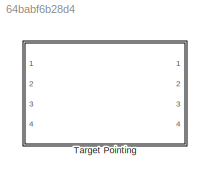
MODEL slx_64babf6b28d4
KIND library
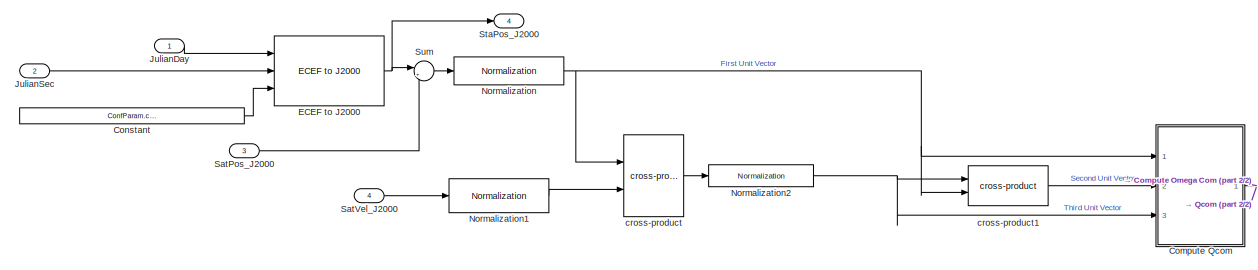
[diagram: Target Pointing - part 1/2, central region]
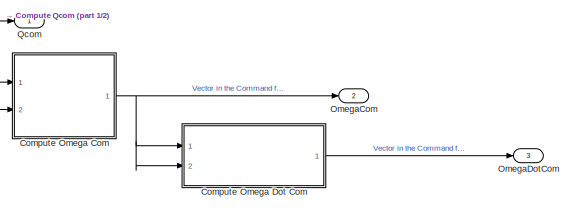
[diagram: Target Pointing - part 2/2, bottom right region]
BLOCK [SubSystem] Target Pointing
  Ports = [4, 4]
  RequestExecContextInheritance = off
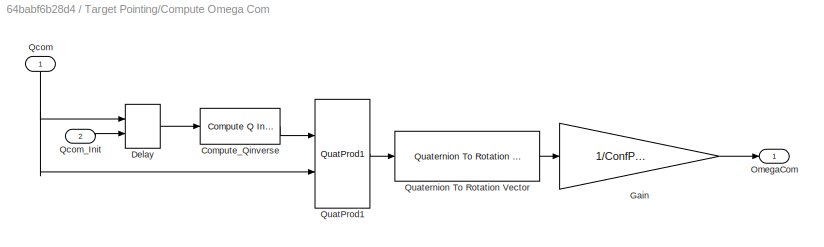
BLOCK [SubSystem] Target Pointing/Compute Omega Com
  Ports = [2, 1]
  RequestExecContextInheritance = off
BLOCK [Reference] Target Pointing/Compute Omega Com/Compute_Qinverse  REF=Qinverse/Compute Q Inverse
  Ports = [1, 1]
  SourceBlock = Qinverse/Compute Q Inverse
  SourceType = SubSystem
BLOCK [Delay] Target Pointing/Compute Omega Com/Delay
  DelayLength = 1
  InitialCondition = confEstim.InitQsat
  InitialConditionSource = Input port
  InputPortMap = u0,p4
  Ports = [2, 1]
  SampleTime = ConfParam.confOrbit.dt
BLOCK [Gain] Target Pointing/Compute Omega Com/Gain
  Gain = 1/ConfParam.confOrbit.dt
  OutDataTypeStr = Inherit: Inherit via internal rule
  ParamDataTypeStr = Inherit: Inherit via internal rule
  SaturateOnIntegerOverflow = off
BLOCK [Outport] Target Pointing/Compute Omega Com/OmegaCom
  IconDisplay = Port number
BLOCK [Inport] Target Pointing/Compute Omega Com/Qcom
  IconDisplay = Port number
BLOCK [Inport] Target Pointing/Compute Omega Com/Qcom_Init
  IconDisplay = Port number
  Port = 2
BLOCK [Reference] Target Pointing/Compute Omega Com/QuatProd1  REF=Qprod/QuatProd1
  Ports = [2, 1]
  SourceBlock = Qprod/QuatProd1
  SourceType = SubSystem
BLOCK [Reference] Target Pointing/Compute Omega Com/Quaternion To Rotation Vector  REF=Quat2Rot/Quaternion To Rotation Vector
  Ports = [1, 1]
  SourceBlock = Quat2Rot/Quaternion To Rotation Vector
  SourceType = SubSystem
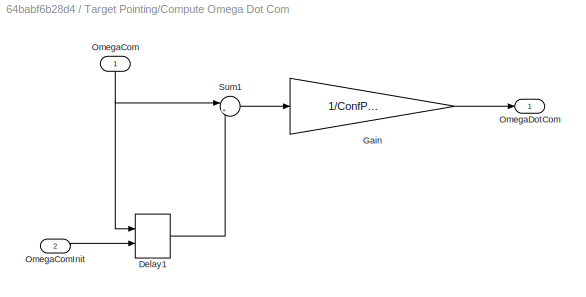
BLOCK [SubSystem] Target Pointing/Compute Omega Dot Com
  Ports = [2, 1]
  RequestExecContextInheritance = off
BLOCK [Delay] Target Pointing/Compute Omega Dot Com/Delay1
  DelayLength = 1
  InitialCondition = confEstim.InitQsat
  InitialConditionSource = Input port
  InputPortMap = u0,p4
  Ports = [2, 1]
  SampleTime = ConfParam.confOrbit.dt
BLOCK [Gain] Target Pointing/Compute Omega Dot Com/Gain
  Gain = 1/ConfParam.confOrbit.dt
  OutDataTypeStr = Inherit: Inherit via internal rule
  ParamDataTypeStr = Inherit: Inherit via internal rule
  SaturateOnIntegerOverflow = off
BLOCK [Inport] Target Pointing/Compute Omega Dot Com/OmegaCom
  IconDisplay = Port number
BLOCK [Inport] Target Pointing/Compute Omega Dot Com/OmegaComInit
  IconDisplay = Port number
  Port = 2
BLOCK [Outport] Target Pointing/Compute Omega Dot Com/OmegaDotCom
  IconDisplay = Port number
BLOCK [Sum] Target Pointing/Compute Omega Dot Com/Sum1
  IconShape = round
  InputSameDT = off
  Inputs = |+-
  OutDataTypeStr = Inherit: Inherit via internal rule
  Ports = [2, 1]
  SaturateOnIntegerOverflow = off
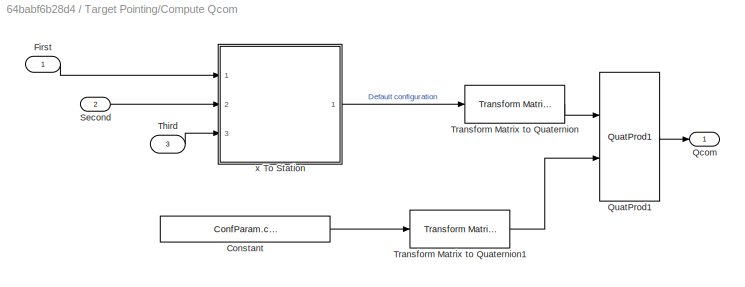
BLOCK [SubSystem] Target Pointing/Compute Qcom
  Ports = [3, 1]
  RequestExecContextInheritance = off
BLOCK [Constant] Target Pointing/Compute Qcom/Constant
  Value = ConfParam.confTargetPointing.M
BLOCK [Inport] Target Pointing/Compute Qcom/First
  IconDisplay = Port number
BLOCK [Outport] Target Pointing/Compute Qcom/Qcom
  IconDisplay = Port number
BLOCK [Reference] Target Pointing/Compute Qcom/QuatProd1  REF=Qprod/QuatProd1
  Ports = [2, 1]
  SourceBlock = Qprod/QuatProd1
  SourceType = SubSystem
BLOCK [Inport] Target Pointing/Compute Qcom/Second
  IconDisplay = Port number
  Port = 2
BLOCK [Inport] Target Pointing/Compute Qcom/Third
  IconDisplay = Port number
  Port = 3
BLOCK [Reference] Target Pointing/Compute Qcom/Transform Matrix to Quaternion  REF=Mat2Quat/Transform Matrix to Quaternion
  Ports = [1, 1]
  SourceBlock = Mat2Quat/Transform Matrix to Quaternion
  SourceType = SubSystem
BLOCK [Reference] Target Pointing/Compute Qcom/Transform Matrix to Quaternion1  REF=Mat2Quat/Transform Matrix to Quaternion
  Ports = [1, 1]
  SourceBlock = Mat2Quat/Transform Matrix to Quaternion
  SourceType = SubSystem
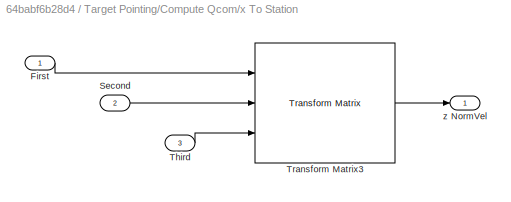
BLOCK [SubSystem] Target Pointing/Compute Qcom/x To Station
  Ports = [3, 1]
  RequestExecContextInheritance = off
BLOCK [Inport] Target Pointing/Compute Qcom/x To Station/First
  IconDisplay = Port number
BLOCK [Inport] Target Pointing/Compute Qcom/x To Station/Second
  IconDisplay = Port number
  Port = 2
BLOCK [Inport] Target Pointing/Compute Qcom/x To Station/Third
  IconDisplay = Port number
  Port = 3
BLOCK [Reference] Target Pointing/Compute Qcom/x To Station/Transform Matrix3  REF=TransformMatrix/Transform Matrix
  Ports = [3, 1]
  SourceBlock = TransformMatrix/Transform Matrix
  SourceType = SubSystem
BLOCK [Outport] Target Pointing/Compute Qcom/x To Station/z NormVel
  IconDisplay = Port number
BLOCK [Constant] Target Pointing/Constant
  Value = ConfParam.confTargetPointing.StaPosECEF
BLOCK [Reference] Target Pointing/ECEF to J2000  REF=ECEFtoJ2000/ECEF to J2000
  Ports = [3, 1]
  SourceBlock = ECEFtoJ2000/ECEF to J2000
  SourceType = SubSystem
BLOCK [Inport] Target Pointing/JulianDay
  IconDisplay = Port number
BLOCK [Inport] Target Pointing/JulianSec
  IconDisplay = Port number
  Port = 2
BLOCK [Reference] Target Pointing/Normalization  REF=Normalization/Normalization
  Ports = [1, 1]
  SourceBlock = Normalization/Normalization
  SourceType = SubSystem
BLOCK [Reference] Target Pointing/Normalization1  REF=Normalization/Normalization
  Ports = [1, 1]
  SourceBlock = Normalization/Normalization
  SourceType = SubSystem
BLOCK [Reference] Target Pointing/Normalization2  REF=Normalization/Normalization
  Ports = [1, 1]
  SourceBlock = Normalization/Normalization
  SourceType = SubSystem
BLOCK [Outport] Target Pointing/OmegaCom
  IconDisplay = Port number
  Port = 2
BLOCK [Outport] Target Pointing/OmegaDotCom
  IconDisplay = Port number
  Port = 3
BLOCK [Outport] Target Pointing/Qcom
  IconDisplay = Port number
BLOCK [Inport] Target Pointing/SatPos_J2000
  IconDisplay = Port number
  Port = 3
BLOCK [Inport] Target Pointing/SatVel_J2000
  IconDisplay = Port number
  Port = 4
BLOCK [Outport] Target Pointing/StaPos_J2000
  IconDisplay = Port number
  Port = 4
BLOCK [Sum] Target Pointing/Sum
  IconShape = round
  InputSameDT = off
  Inputs = |+-
  OutDataTypeStr = Inherit: Inherit via internal rule
  Ports = [2, 1]
  SaturateOnIntegerOverflow = off
BLOCK [Reference] Target Pointing/cross-product  REF=CrossProd/cross-product
  Ports = [2, 1]
  SourceBlock = CrossProd/cross-product
  SourceType = SubSystem
BLOCK [Reference] Target Pointing/cross-product1  REF=CrossProd/cross-product
  Ports = [2, 1]
  SourceBlock = CrossProd/cross-product
  SourceType = SubSystem
LINE Target Pointing/Compute Omega Com/Compute_Qinverse:1 -> Target Pointing/Compute Omega Com/QuatProd1:1
LINE Target Pointing/Compute Omega Com/Delay:1 -> Target Pointing/Compute Omega Com/Compute_Qinverse:1
LINE Target Pointing/Compute Omega Com/Gain:1 -> Target Pointing/Compute Omega Com/OmegaCom:1
NET Target Pointing/Compute Omega Com/Qcom:1 -> Target Pointing/Compute Omega Com/Delay:1, Target Pointing/Compute Omega Com/QuatProd1:2
LINE Target Pointing/Compute Omega Com/Qcom_Init:1 -> Target Pointing/Compute Omega Com/Delay:2
LINE Target Pointing/Compute Omega Com/QuatProd1:1 -> Target Pointing/Compute Omega Com/Quaternion To Rotation Vector:1
LINE Target Pointing/Compute Omega Com/Quaternion To Rotation Vector:1 -> Target Pointing/Compute Omega Com/Gain:1
NET Target Pointing/Compute Omega Com:1 -> Target Pointing/Compute Omega Dot Com:1, Target Pointing/Compute Omega Dot Com:2, Target Pointing/OmegaCom:1
LINE Target Pointing/Compute Omega Dot Com/Delay1:1 -> Target Pointing/Compute Omega Dot Com/Sum1:2
LINE Target Pointing/Compute Omega Dot Com/Gain:1 -> Target Pointing/Compute Omega Dot Com/OmegaDotCom:1
NET Target Pointing/Compute Omega Dot Com/OmegaCom:1 -> Target Pointing/Compute Omega Dot Com/Delay1:1, Target Pointing/Compute Omega Dot Com/Sum1:1
LINE Target Pointing/Compute Omega Dot Com/OmegaComInit:1 -> Target Pointing/Compute Omega Dot Com/Delay1:2
LINE Target Pointing/Compute Omega Dot Com/Sum1:1 -> Target Pointing/Compute Omega Dot Com/Gain:1
LINE Target Pointing/Compute Omega Dot Com:1 -> Target Pointing/OmegaDotCom:1
LINE Target Pointing/Compute Qcom/Constant:1 -> Target Pointing/Compute Qcom/Transform Matrix to Quaternion1:1
LINE Target Pointing/Compute Qcom/First:1 -> Target Pointing/Compute Qcom/x To Station:1
LINE Target Pointing/Compute Qcom/QuatProd1:1 -> Target Pointing/Compute Qcom/Qcom:1
LINE Target Pointing/Compute Qcom/Second:1 -> Target Pointing/Compute Qcom/x To Station:2
LINE Target Pointing/Compute Qcom/Third:1 -> Target Pointing/Compute Qcom/x To Station:3
LINE Target Pointing/Compute Qcom/Transform Matrix to Quaternion1:1 -> Target Pointing/Compute Qcom/QuatProd1:2
LINE Target Pointing/Compute Qcom/Transform Matrix to Quaternion:1 -> Target Pointing/Compute Qcom/QuatProd1:1
LINE Target Pointing/Compute Qcom/x To Station/First:1 -> Target Pointing/Compute Qcom/x To Station/Transform Matrix3:1
LINE Target Pointing/Compute Qcom/x To Station/Second:1 -> Target Pointing/Compute Qcom/x To Station/Transform Matrix3:2
LINE Target Pointing/Compute Qcom/x To Station/Third:1 -> Target Pointing/Compute Qcom/x To Station/Transform Matrix3:3
LINE Target Pointing/Compute Qcom/x To Station/Transform Matrix3:1 -> Target Pointing/Compute Qcom/x To Station/z NormVel:1
LINE Target Pointing/Compute Qcom/x To Station:1 -> Target Pointing/Compute Qcom/Transform Matrix to Quaternion:1
NET Target Pointing/Compute Qcom:1 -> Target Pointing/Compute Omega Com:1, Target Pointing/Compute Omega Com:2, Target Pointing/Qcom:1
LINE Target Pointing/Constant:1 -> Target Pointing/ECEF to J2000:3
NET Target Pointing/ECEF to J2000:1 -> Target Pointing/StaPos_J2000:1, Target Pointing/Sum:1
LINE Target Pointing/JulianDay:1 -> Target Pointing/ECEF to J2000:1
LINE Target Pointing/JulianSec:1 -> Target Pointing/ECEF to J2000:2
LINE Target Pointing/Normalization1:1 -> Target Pointing/cross-product:2
NET Target Pointing/Normalization2:1 -> Target Pointing/Compute Qcom:3, Target Pointing/cross-product1:1
NET Target Pointing/Normalization:1 -> Target Pointing/Compute Qcom:1, Target Pointing/cross-product1:2, Target Pointing/cross-product:1
LINE Target Pointing/SatPos_J2000:1 -> Target Pointing/Sum:2
LINE Target Pointing/SatVel_J2000:1 -> Target Pointing/Normalization1:1
LINE Target Pointing/Sum:1 -> Target Pointing/Normalization:1
LINE Target Pointing/cross-product1:1 -> Target Pointing/Compute Qcom:2
LINE Target Pointing/cross-product:1 -> Target Pointing/Normalization2:1
note: NET lines group one-source signal fan-out (src -> all destinations, sorted); 1:1 wires keep LINE
